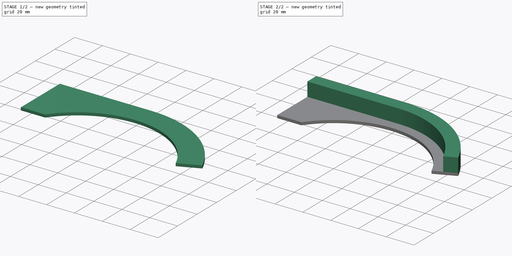
[diagram: build sequence overview — one tinted view per stage of 2, left to right]
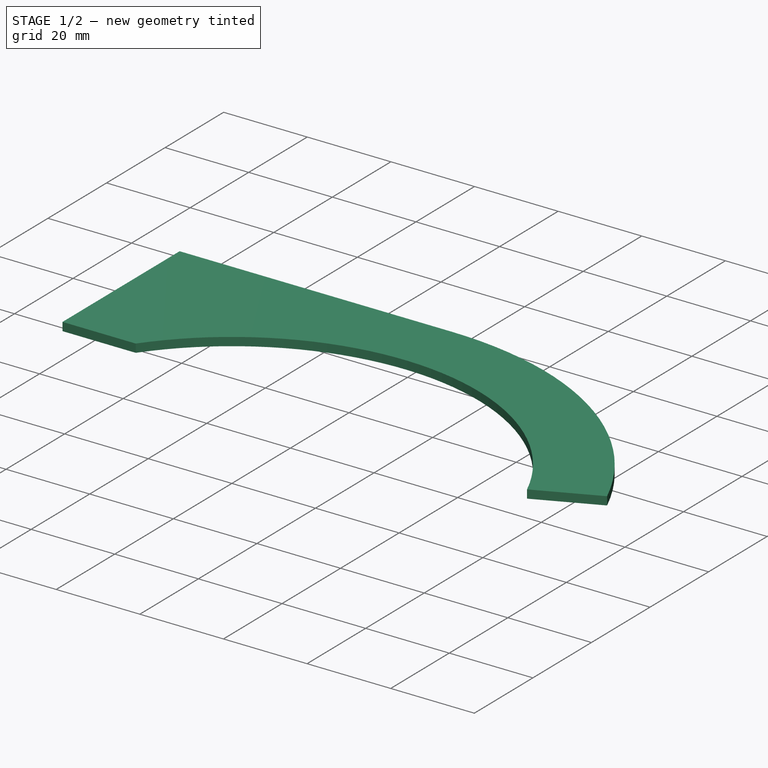
[diagram: stage 1 of 2 — iso view after this stage's code; geometry added in this stage tinted green]
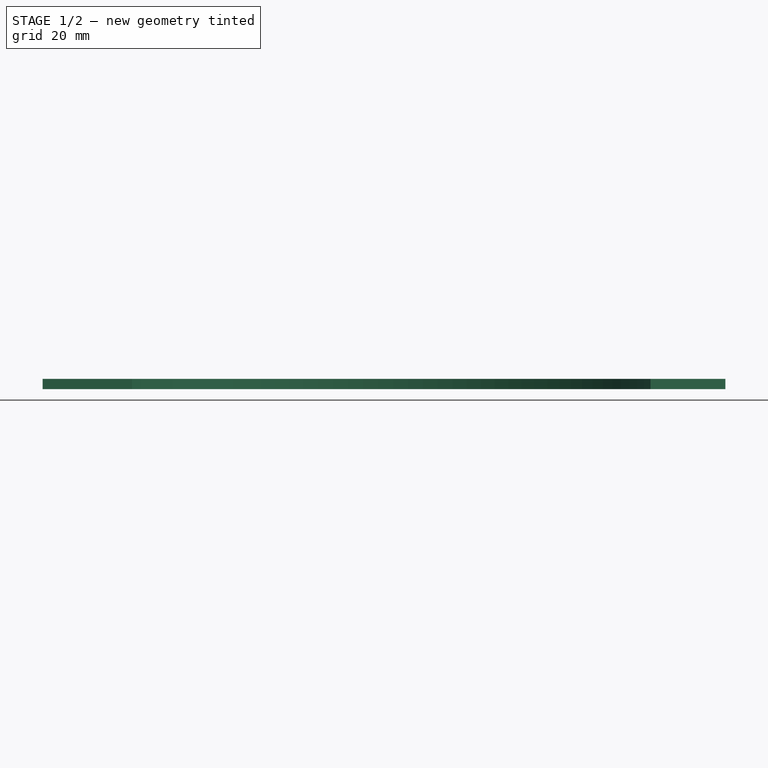
[diagram: stage 1 of 2 — front view after this stage's code; geometry added in this stage tinted green]
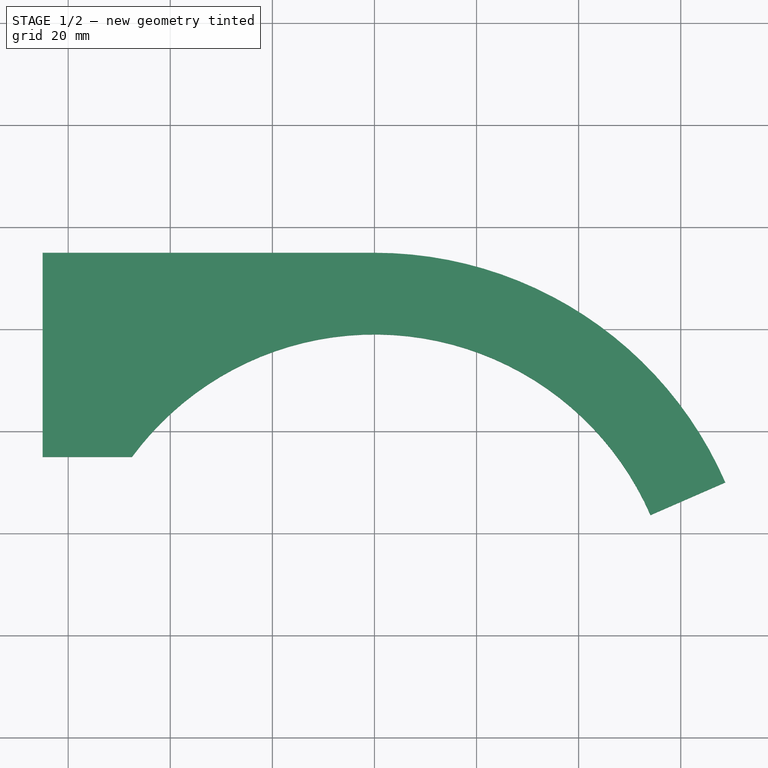
[diagram: stage 1 of 2 — top view after this stage's code; geometry added in this stage tinted green]
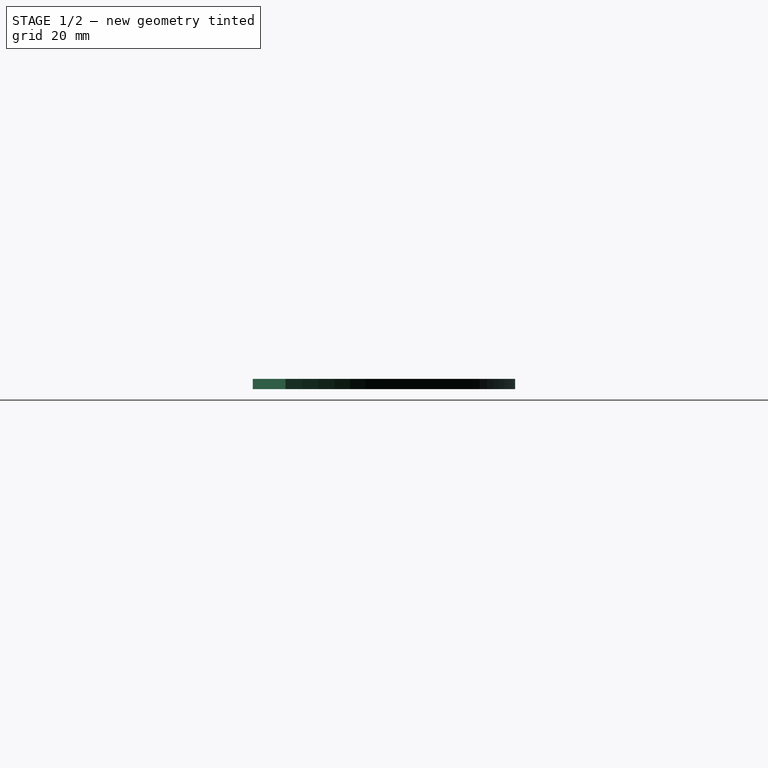
[diagram: stage 1 of 2 — right view after this stage's code; geometry added in this stage tinted green]
FCSTD DOCUMENT  (FreeCAD 0.19R)
Label: ChainGuard
License: All rights reserved
LicenseURL: http://en.wikipedia.org/wiki/All_rights_reserved
objects: Sketcher::SketchObject×3, PartDesign::Pad×2, PartDesign::Body×1
note: 8 computed .brp shape members not serialized (recipe doc carries the construction recipe); baked Part::Feature solids carry a one-line shape summary decoded from their .brp

FEATURE [Sketcher::SketchObject] Sketch
  FullyConstrained = false
  MapMode = 5
  Support = -> [XY_Plane]
  sketch-geometry (8):
    g0: LineSegment StartX=0 StartY=0 StartZ=0 EndX=47.4154 EndY=50.8468 EndZ=0
    g1: LineSegment StartX=0 StartY=0 StartZ=0 EndX=-15.0726 EndY=49.3003 EndZ=0
    g2: ArcOfCircle CenterX=0 CenterY=0 CenterZ=0 NormalX=0 NormalY=0 NormalZ=1 AngleXU=0 Radius=75 StartAngle=0.411517 EndAngle=1.5708
    g3: LineSegment StartX=-65 StartY=75 StartZ=0 EndX=0 EndY=75 EndZ=0
    g4: LineSegment StartX=-65 StartY=75 StartZ=0 EndX=-65 EndY=35 EndZ=0
    g5: ArcOfCircle CenterX=0 CenterY=0 CenterZ=0 NormalX=0 NormalY=0 NormalZ=1 AngleXU=0 Radius=59 StartAngle=0.411517 EndAngle=2.50654
    g6: LineSegment StartX=54.0744 StartY=23.6 StartZ=0 EndX=68.7386 EndY=30 EndZ=0
    g7: LineSegment StartX=-65 StartY=35 StartZ=0 EndX=-47.4974 EndY=35 EndZ=0
  constraints (22):
    c: Coincident(g0,g-1)
    c: Coincident(g1,g0)
    c: Angle(g1) = 1.8675
    c: Angle(g0) = 0.820305
    c: Coincident(g2,g-1)
    c: PointOnObject(g2,g-2)
    c: Coincident(g3,g2)
    c: Horizontal(g3)
    c: Distance(g3) = 65
    c: Coincident(g4,g3)
    c: Vertical(g4)
    c: Coincident(g5,g2)
    c: Coincident(g6,g5)
    c: Coincident(g6,g2)
    c: Perpendicular(g5,g6)
    c: DistanceY(g5) = 35
    c: Coincident(g7,g4)
    c: Coincident(g7,g5)
    c: Radius(g5) = 59
    c: Radius(g2) = 75
    c: Horizontal(g7)
    c: DistanceY(g2) = 30
FEATURE [PartDesign::Pad] Pad
  Direction = (1,1,1)
  Length = 2
  Length2 = 100
  Profile = -> Sketch
  Type = 0
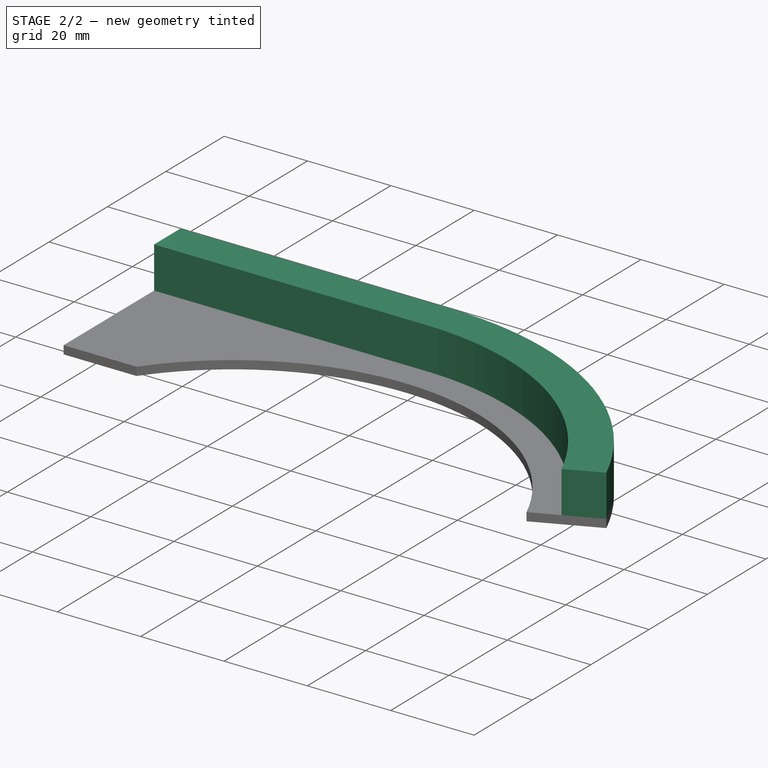
[diagram: stage 2 of 2 — iso view after this stage's code; geometry added in this stage tinted green]
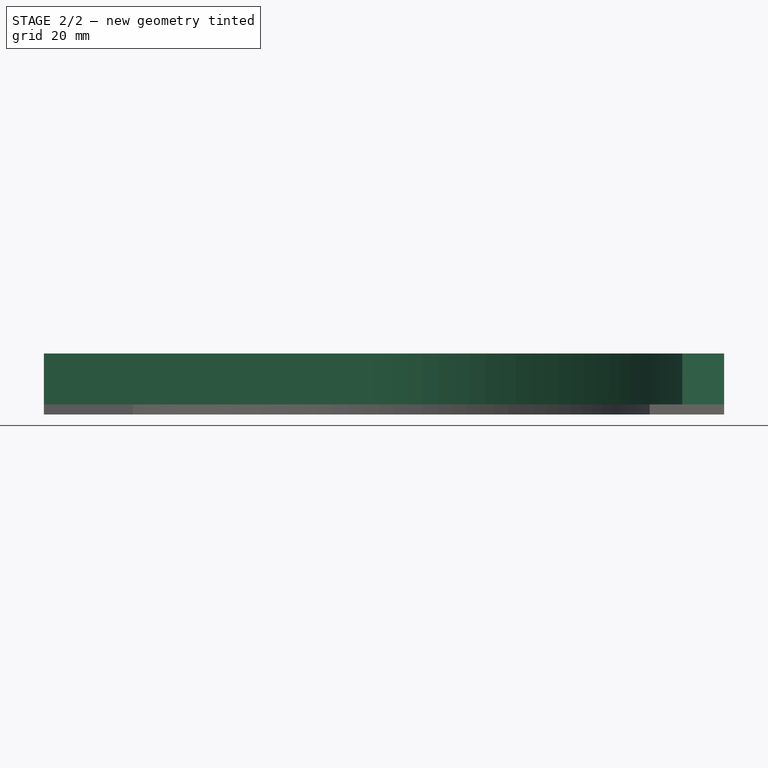
[diagram: stage 2 of 2 — front view after this stage's code; geometry added in this stage tinted green]
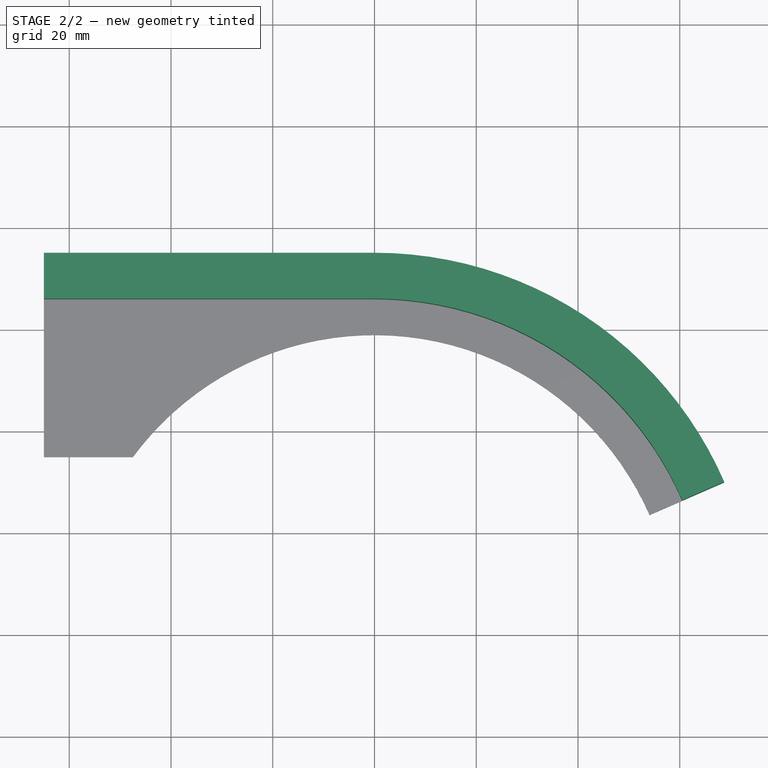
[diagram: stage 2 of 2 — top view after this stage's code; geometry added in this stage tinted green]
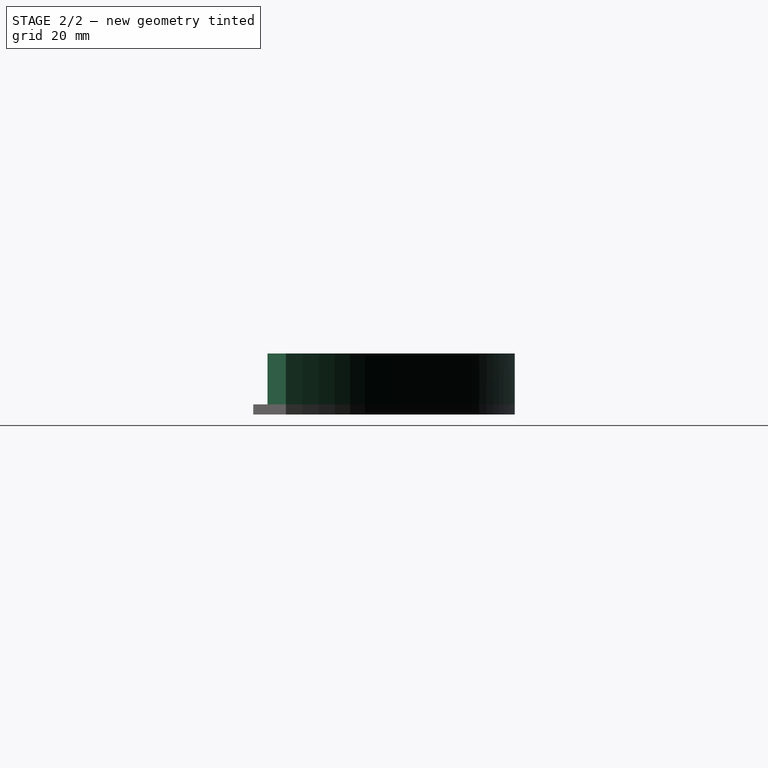
[diagram: stage 2 of 2 — right view after this stage's code; geometry added in this stage tinted green]
FEATURE [Sketcher::SketchObject] Sketch002
  ExternalGeometry = -> [Pad]
  FullyConstrained = true
  MapMode = 5
  Placement = pos=(0,0,0) rot=(1,0,0;3.14159rad)
  sketch-geometry (6):
    g0: ArcOfCircle CenterX=0 CenterY=0 CenterZ=0 NormalX=0 NormalY=0 NormalZ=1 AngleXU=0 Radius=75 StartAngle=4.71239 EndAngle=5.87167
    g1: LineSegment StartX=-1.38e-14 StartY=-75 StartZ=0 EndX=-65 EndY=-75 EndZ=0
    g2: ArcOfCircle CenterX=0 CenterY=0 CenterZ=0 NormalX=0 NormalY=0 NormalZ=1 AngleXU=0 Radius=66 StartAngle=4.71239 EndAngle=5.87167
    g3: LineSegment StartX=68.7386 StartY=-30 StartZ=0 EndX=60.49 EndY=-26.4 EndZ=0
    g4: LineSegment StartX=-1.21e-14 StartY=-66 StartZ=0 EndX=-65 EndY=-66 EndZ=0
    g5: LineSegment StartX=-65 StartY=-66 StartZ=0 EndX=-65 EndY=-75 EndZ=0
  constraints (16):
    c: Coincident(g0,g-1)
    c: PointOnObject(g0,g-2)
    c: Coincident(g2,g0)
    c: PointOnObject(g2,g-2)
    c: Radius(g2) = 66
    c: Coincident(g3,g0)
    c: Coincident(g3,g2)
    c: Coincident(g4,g2)
    c: Horizontal(g4)
    c: Coincident(g5,g4)
    c: Coincident(g5,g1)
    c: Coincident(g1,g-3)
    c: PointOnObject(g4,g-3)
    c: PointOnObject(g2,g-4)
    c: Coincident(g0,g-4)
    c: Coincident(g1,g0)
FEATURE [PartDesign::Pad] Pad001
  BaseFeature = -> Pad
  Direction = (1,1,1)
  Length = 12
  Length2 = 100
  Profile = -> Sketch002
  Reversed = true
  Type = 0
FEATURE [Sketcher::SketchObject] Sketch003
  ExternalGeometry = -> [Pad001]
  FullyConstrained = false
  MapMode = 5
  Placement = pos=(0,0,2) rot=(0,0,1;0rad)
  Support = -> [Pad001]
  sketch-geometry (10):
    g0: LineSegment StartX=38.7004 StartY=-72.293 StartZ=0 EndX=69.4173 EndY=-43.6491 EndZ=0
    g1: LineSegment StartX=69.4173 StartY=-43.6491 StartZ=0 EndX=60.5513 EndY=-34.1415 EndZ=0
    g2: LineSegment StartX=60.5513 StartY=-34.1415 StartZ=0 EndX=29.8345 EndY=-62.7854 EndZ=0
    g3: LineSegment StartX=29.8345 StartY=-62.7854 StartZ=0 EndX=38.7004 EndY=-72.293 EndZ=0
    g4: LineSegment StartX=-2.65844 StartY=-90.9001 StartZ=0 EndX=2.66803 EndY=-65.9461 EndZ=0
    g5: LineSegment StartX=2.66803 StartY=-65.9461 StartZ=0 EndX=-42.3319 EndY=-66 EndZ=0
    g6: LineSegment StartX=-42.3319 StartY=-66 StartZ=0 EndX=-45.9152 EndY=-78.4964 EndZ=0
    g7: LineSegment StartX=-45.9152 StartY=-78.4964 StartZ=0 EndX=-2.65844 EndY=-90.9001 EndZ=0
    g8: LineSegment StartX=-36.0031 StartY=-125.558 StartZ=0 EndX=0 EndY=0 EndZ=0
    g9: LineSegment StartX=0 StartY=0 StartZ=0 EndX=108.984 EndY=-116.871 EndZ=0
  constraints (26):
    c: Coincident(g0,g1)
    c: Coincident(g1,g2)
    c: Coincident(g2,g3)
    c: Coincident(g3,g0)
    c: Coincident(g4,g5)
    c: Coincident(g5,g6)
    c: Coincident(g6,g7)
    c: Coincident(g7,g4)
    c: Perpendicular(g2,g1)
    c: Perpendicular(g0,g3)
    c: Equal(g2,g0)
    c: Perpendicular(g6,g7)
    c: Equal(g7,g5)
    c: Coincident(g8,g-1)
    c: Angle(g8) = 1.29154
    c: Coincident(g9,g8)
    c: Angle(g9) = -0.820305
    c: Symmetric(g6,g4,g8)
    c: Distance(g7) = 45
    c: Symmetric(g0,g0,g9)
    c: Distance(g0) = 42
    c: Distance(g3) = 13
    c: Distance(g6) = 13
    c: PointOnObject(g5,g-3)
    c: Distance(g-1,g0) = 82
    c: PointOnObject(g4,g-4)
FEATURE [PartDesign::Body] Body
  Group = -> [Sketch,Pad,Sketch002,Pad001,Sketch003]
  Origin = -> Origin
  Tip = -> Pad001
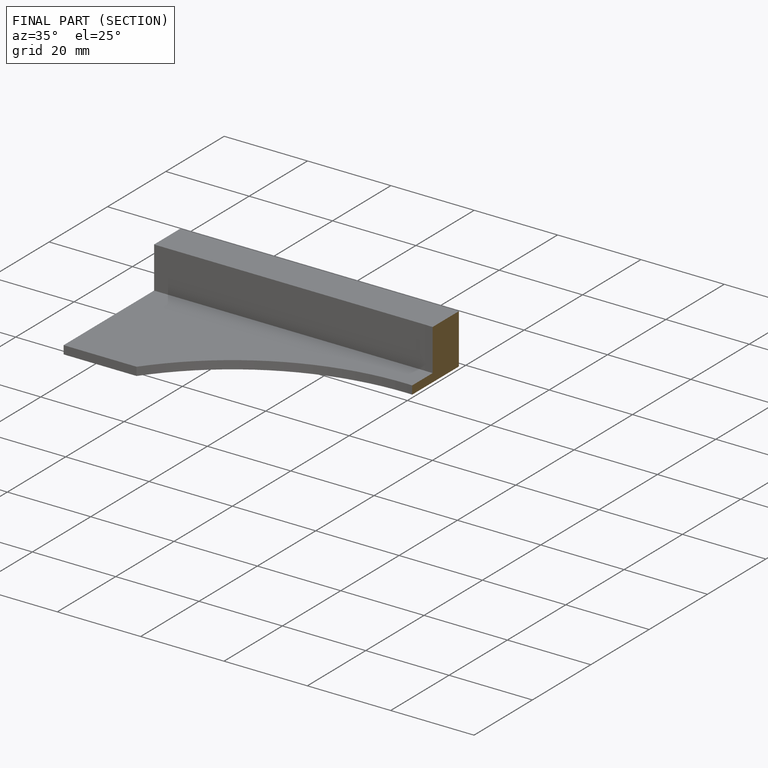
[diagram: finished part — half-section view (interior)]
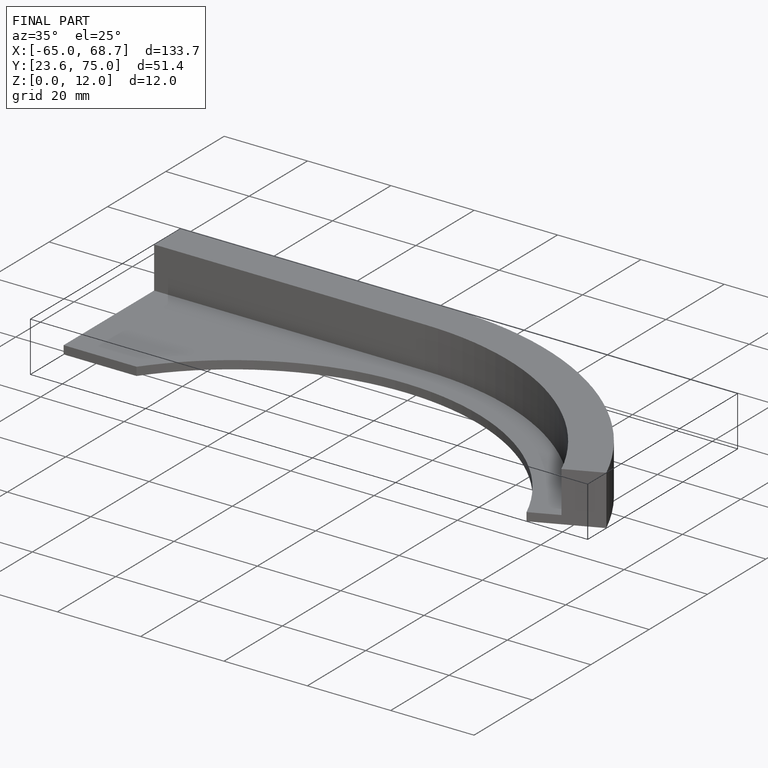
[diagram: finished part — iso view with bounding-box wireframe]
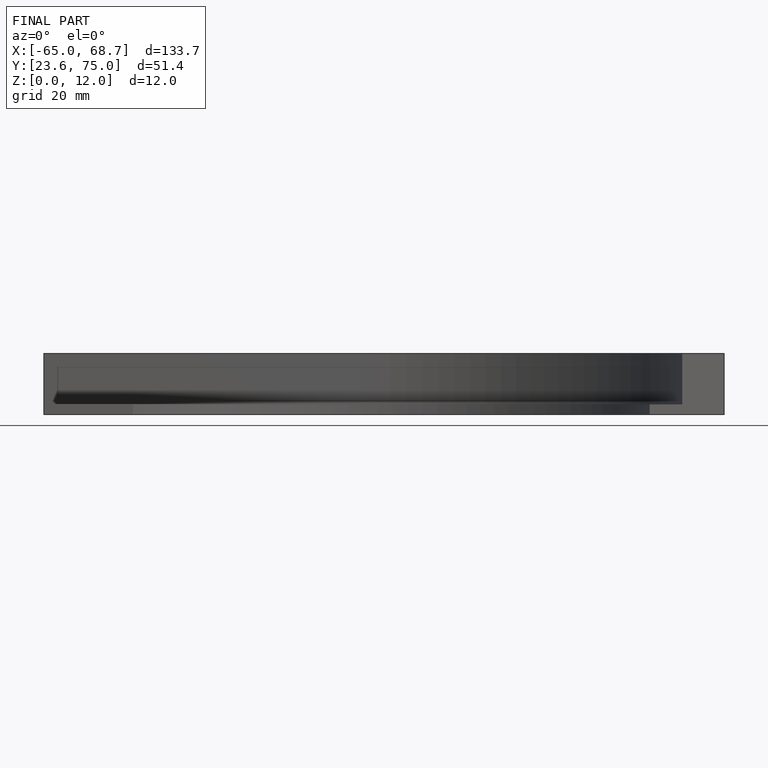
[diagram: finished part — front view with bounding-box wireframe]
